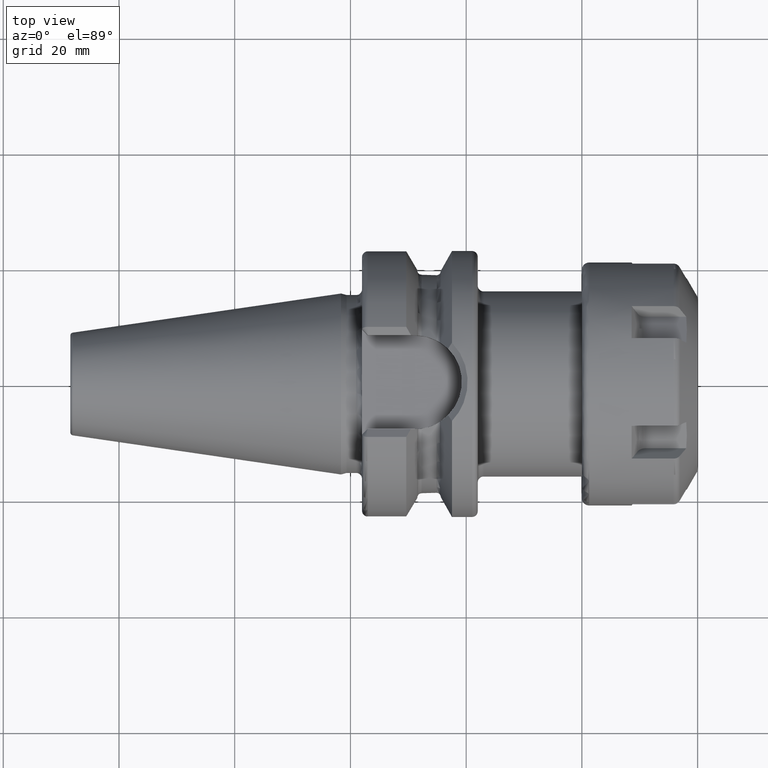
[diagram: clean part render]
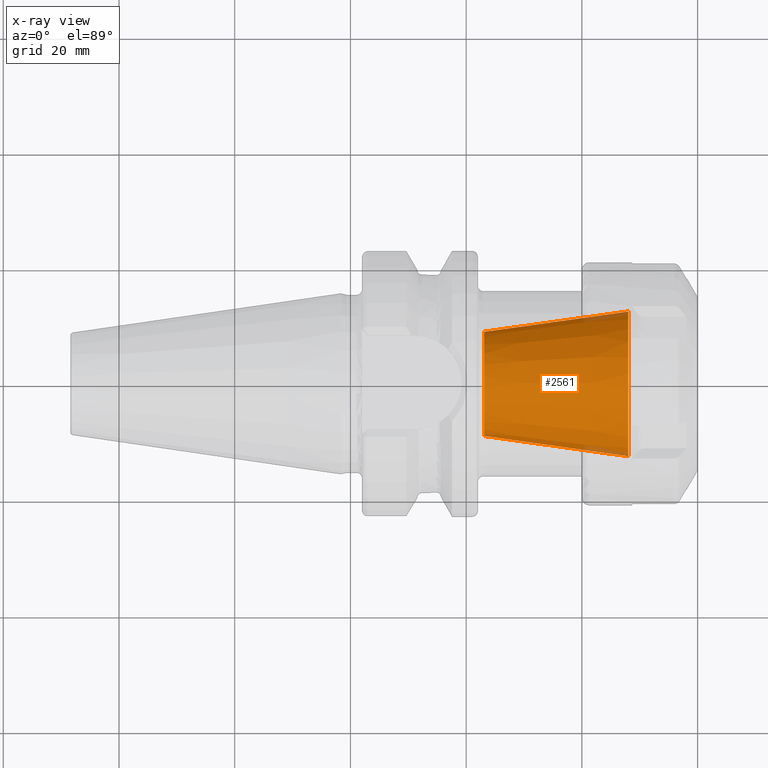
[diagram: x-ray — body ghosted, one internal face saturated and labeled with its STEP entity id]
A machine part, top view, then the same camera in x-ray: the body is ghosted and one INTERNAL B-rep face — a face not visible from any outside direction — is saturated and labeled: STEP entity #2561.
In plain terms, the highlighted conical surface has half-angle 8 deg.
Its self-contained STEP definition (entity closure, byte-faithful):
#870=CARTESIAN_POINT('',(4.8E1,0.E0,0.E0));
#871=DIRECTION('',(1.E0,0.E0,0.E0));
#872=DIRECTION('',(0.E0,1.E0,0.E0));
#873=AXIS2_PLACEMENT_3D('',#870,#871,#872);
#880=DIRECTION('',(-9.902680687416E-1,1.391731009601E-1,0.E0));
#881=VECTOR('',#880,2.514853787015E1);
#882=CARTESIAN_POINT('',(4.8E1,-1.25E1,0.E0));
#883=LINE('',#882,#881);
#884=DIRECTION('',(-9.902680687416E-1,-1.391731009601E-1,0.E0));
#885=VECTOR('',#884,2.514853787015E1);
#886=CARTESIAN_POINT('',(4.8E1,1.25E1,0.E0));
#887=LINE('',#886,#885);
#901=CARTESIAN_POINT('',(2.309620597166E1,0.E0,0.E0));
#902=DIRECTION('',(1.E0,0.E0,0.E0));
#903=DIRECTION('',(0.E0,1.E0,0.E0));
#904=AXIS2_PLACEMENT_3D('',#901,#902,#903);
#1355=CARTESIAN_POINT('',(2.309620597166E1,9.E0,0.E0));
#1357=VERTEX_POINT('',#1355);
#1359=CARTESIAN_POINT('',(2.309620597166E1,-9.E0,0.E0));
#1361=VERTEX_POINT('',#1359);
#1363=CARTESIAN_POINT('',(4.8E1,1.25E1,0.E0));
#1364=CARTESIAN_POINT('',(4.8E1,-1.25E1,0.E0));
#1365=VERTEX_POINT('',#1363);
#1366=VERTEX_POINT('',#1364);
#2547=CARTESIAN_POINT('',(3.554810298583E1,0.E0,0.E0));
#2548=DIRECTION('',(1.E0,0.E0,0.E0));
#2549=DIRECTION('',(0.E0,-1.E0,0.E0));
#2550=AXIS2_PLACEMENT_3D('',#2547,#2548,#2549);
#2551=CONICAL_SURFACE('',#2550,1.075E1,8.E0);
#2552=ORIENTED_EDGE('',*,*,#2540,.F.);
#2554=ORIENTED_EDGE('',*,*,#2553,.T.);
#2556=ORIENTED_EDGE('',*,*,#2555,.T.);
#2558=ORIENTED_EDGE('',*,*,#2557,.F.);
#2559=EDGE_LOOP('',(#2552,#2554,#2556,#2558));
#2560=FACE_OUTER_BOUND('',#2559,.F.);
#2561=ADVANCED_FACE('',(#2560),#2551,.F.);
#874=CIRCLE('',#873,1.25E1);
#905=CIRCLE('',#904,9.E0);
#2540=EDGE_CURVE('',#1365,#1366,#874,.T.);
#2553=EDGE_CURVE('',#1365,#1357,#887,.T.);
#2555=EDGE_CURVE('',#1357,#1361,#905,.T.);
#2557=EDGE_CURVE('',#1366,#1361,#883,.T.);